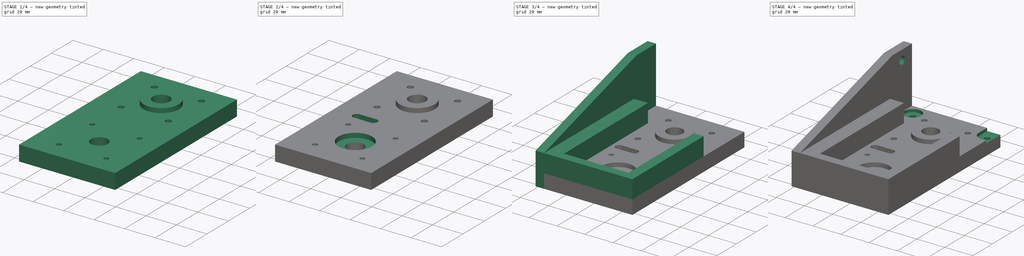
[diagram: build sequence overview — one tinted view per stage of 4, left to right]
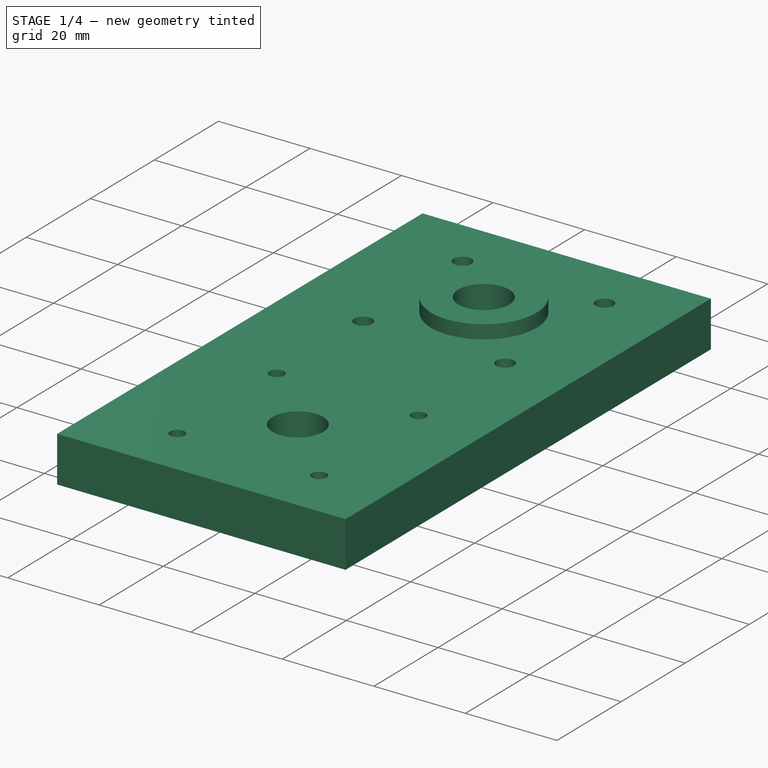
[diagram: stage 1 of 4 — iso view after this stage's code; geometry added in this stage tinted green]
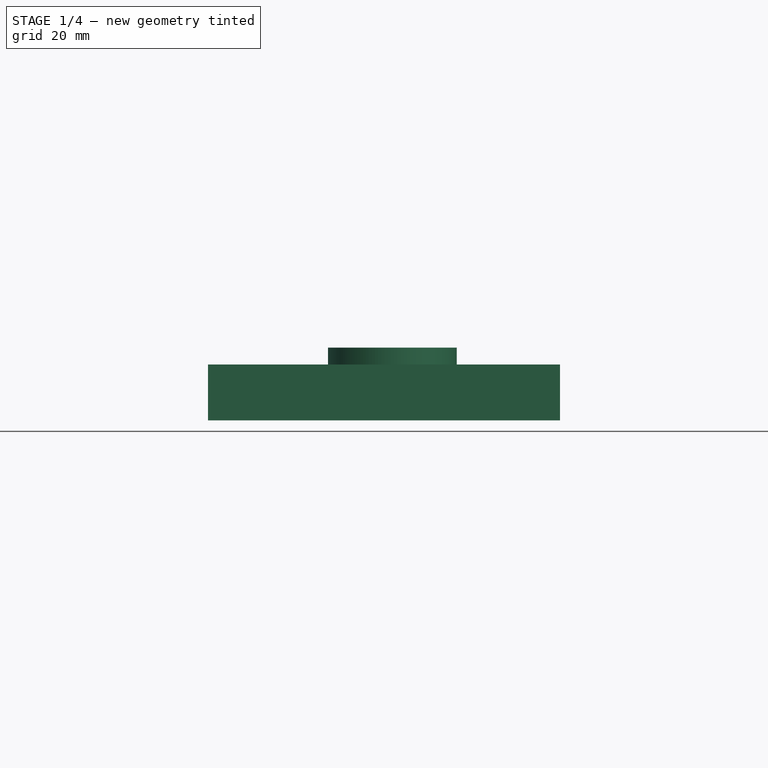
[diagram: stage 1 of 4 — front view after this stage's code; geometry added in this stage tinted green]
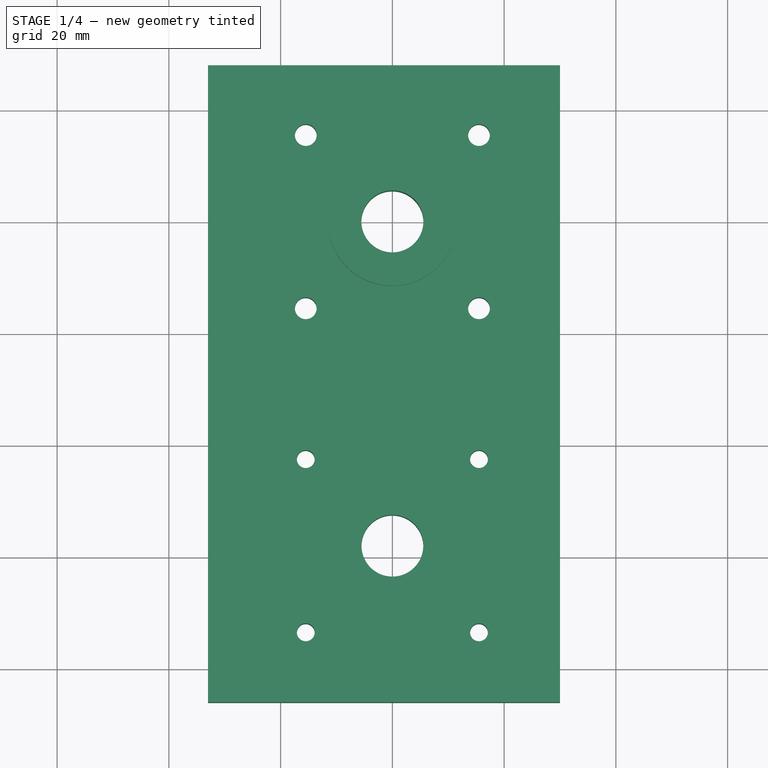
[diagram: stage 1 of 4 — top view after this stage's code; geometry added in this stage tinted green]
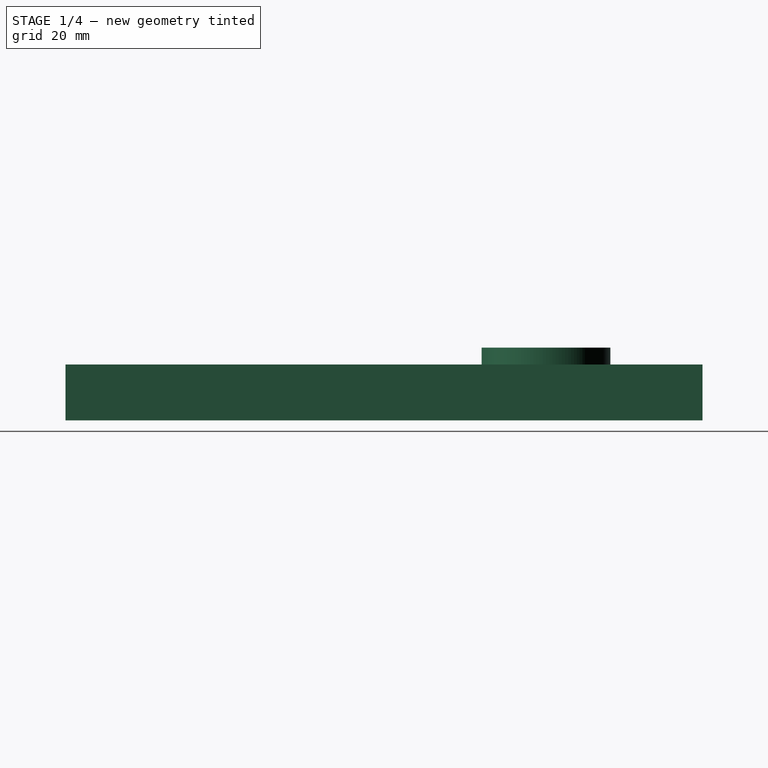
[diagram: stage 1 of 4 — right view after this stage's code; geometry added in this stage tinted green]
FCSTD DOCUMENT  (FreeCAD 0.19R)
Label: BeltDriveUnit2.1
License: All rights reserved
LicenseURL: http://en.wikipedia.org/wiki/All_rights_reserved
objects: Sketcher::SketchObject×18, PartDesign::Pocket×8, PartDesign::Pad×4, PartDesign::Body×1
note: 43 computed .brp shape members not serialized (recipe doc carries the construction recipe); baked Part::Feature solids carry a one-line shape summary decoded from their .brp

FEATURE [Sketcher::SketchObject] Sketch
  FullyConstrained = false
  MapMode = 5
  Support = -> [XY_Plane]
  sketch-geometry (17):
    g0: LineSegment StartX=-33 StartY=28 StartZ=0 EndX=30 EndY=28 EndZ=0
    g1: LineSegment StartX=30 StartY=28 StartZ=0 EndX=30 EndY=-86 EndZ=0
    g2: LineSegment StartX=30 StartY=-86 StartZ=0 EndX=-33 EndY=-86 EndZ=0
    g3: LineSegment StartX=-33 StartY=-86 StartZ=0 EndX=-33 EndY=28 EndZ=0
    g4: LineSegment StartX=-21 StartY=21 StartZ=0 EndX=21 EndY=21 EndZ=0
    g5: LineSegment StartX=21 StartY=21 StartZ=0 EndX=21 EndY=-21 EndZ=0
    g6: LineSegment StartX=21 StartY=-21 StartZ=0 EndX=-21 EndY=-21 EndZ=0
    g7: LineSegment StartX=-21 StartY=-21 StartZ=0 EndX=-21 EndY=21 EndZ=0
    g8: Circle CenterX=-15.5 CenterY=15.5 CenterZ=0 NormalX=0 NormalY=0 NormalZ=1 AngleXU=0 Radius=1.95
    g9: Circle CenterX=15.5 CenterY=15.5 CenterZ=0 NormalX=0 NormalY=0 NormalZ=1 AngleXU=0 Radius=1.95
    g10: Circle CenterX=-15.5 CenterY=-15.5 CenterZ=0 NormalX=0 NormalY=0 NormalZ=1 AngleXU=0 Radius=1.95
    g11: Circle CenterX=15.5 CenterY=-15.5 CenterZ=0 NormalX=0 NormalY=0 NormalZ=1 AngleXU=0 Radius=1.95
    g12: Circle CenterX=0 CenterY=-58 CenterZ=0 NormalX=0 NormalY=0 NormalZ=1 AngleXU=0 Radius=5.525
    g13: Circle CenterX=-15.5 CenterY=-42.5 CenterZ=0 NormalX=0 NormalY=0 NormalZ=1 AngleXU=0 Radius=1.6
    g14: Circle CenterX=15.5 CenterY=-42.5 CenterZ=0 NormalX=0 NormalY=0 NormalZ=1 AngleXU=0 Radius=1.6
    g15: Circle CenterX=-15.5 CenterY=-73.5 CenterZ=0 NormalX=0 NormalY=0 NormalZ=1 AngleXU=0 Radius=1.6
    g16: Circle CenterX=15.5 CenterY=-73.5 CenterZ=0 NormalX=0 NormalY=0 NormalZ=1 AngleXU=0 Radius=1.6
  constraints (44):
    c: Coincident(g0,g1)
    c: Coincident(g1,g2)
    c: Coincident(g2,g3)
    c: Coincident(g3,g0)
    c: Horizontal(g2)
    c: Vertical(g1)
    c: Vertical(g3)
    c: Coincident(g4,g5)
    c: Coincident(g5,g6)
    c: Coincident(g6,g7)
    c: Coincident(g7,g4)
    c: Horizontal(g4)
    c: Horizontal(g6)
    c: Vertical(g5)
    c: Vertical(g7)
    c: Equal(g5,g4)
    c: Distance(g5) = 42
    c: Symmetric(g4,g6,g-1)
    c: Distance(g4,g0) = 7
    c: Diameter(g11) = 3.9
    c: Equal(g11,g10)
    c: Equal(g11,g8)
    c: Equal(g11,g9)
    c: Distance(g9,g8) = 31
    c: Symmetric(g9,g8,g-2)
    c: Distance(g10,g8) = 31
    c: DistanceY(g11,g9) = 31
    c: DistanceX(g10,g11) = 31
    c: Symmetric(g9,g10,g-1)
    c: Diameter(g16) = 3.2
    c: Equal(g16,g14)
    c: Equal(g16,g13)
    c: Equal(g16,g15)
    c: Symmetric(g14,g13,g-2)
    c: Symmetric(g16,g15,g-2)
    c: Symmetric(g16,g13,g12)
    c: PointOnObject(g12,g-2)
    c: Distance(g14,g13) = 31
    c: Distance(g16,g14) = 31
    c: Distance(g-1,g12) = 58
    c: Diameter(g12) = 11.05
    c: DistanceY(g1) = -86
    c: DistanceX(g0) = 30
    c: DistanceX(g0) = -33
FEATURE [PartDesign::Pad] Pad
  Direction = (1,1,1)
  Length = 10
  Length2 = 100
  Profile = -> Sketch
  Type = 0
FEATURE [Sketcher::SketchObject] Sketch004  label="StepperPlugArtillery"
  FullyConstrained = true
  MapMode = 5
  Placement = pos=(0,0,10) rot=(0,0,1;0rad)
  Support = -> [Pad]
  sketch-geometry (1):
    g0: Circle CenterX=0 CenterY=0 CenterZ=0 NormalX=0 NormalY=0 NormalZ=1 AngleXU=0 Radius=11.525
  constraints (2):
    c: Coincident(g0,g-1)
    c: Diameter(g0) = 23.05
FEATURE [PartDesign::Pad] Pad001
  BaseFeature = -> Pad
  Direction = (1,1,1)
  Length = 3
  Length2 = 100
  Profile = -> Sketch004
  Type = 0
FEATURE [Sketcher::SketchObject] Sketch003  label="BearingBore"
  FullyConstrained = false
  MapMode = 5
  Placement = pos=(0,0,13) rot=(0,0,1;0rad)
  Support = -> [Pad001]
  sketch-geometry (1):
    g0: Circle CenterX=0 CenterY=0 CenterZ=0 NormalX=0 NormalY=0 NormalZ=1 AngleXU=0 Radius=5.55
  constraints (1):
    c: Diameter(g0) = 11.1
FEATURE [PartDesign::Pocket] Pocket
  BaseFeature = -> Pad001
  Length = 5
  Length2 = 100
  Profile = -> Sketch003
  Type = 1
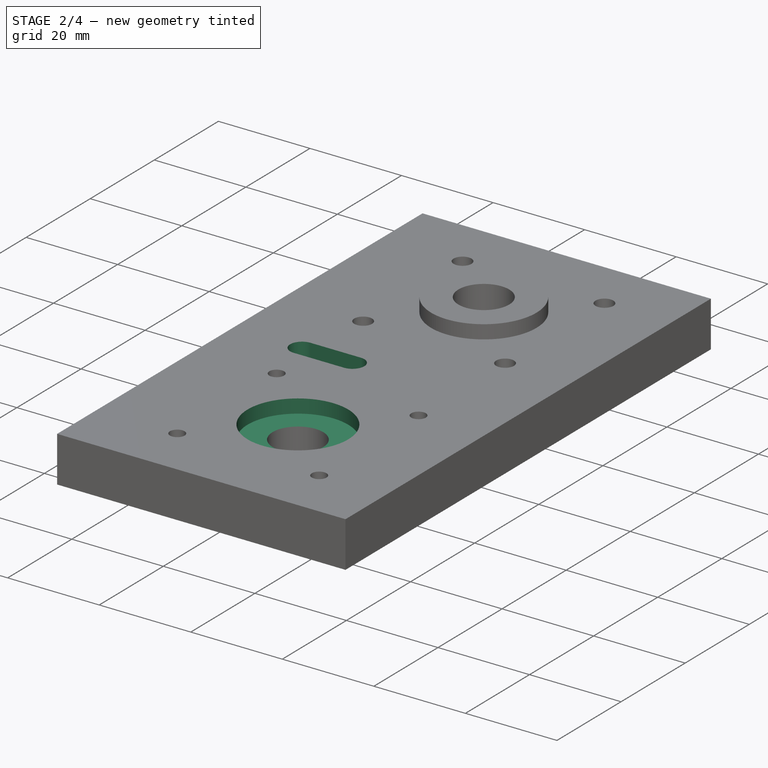
[diagram: stage 2 of 4 — iso view after this stage's code; geometry added in this stage tinted green]
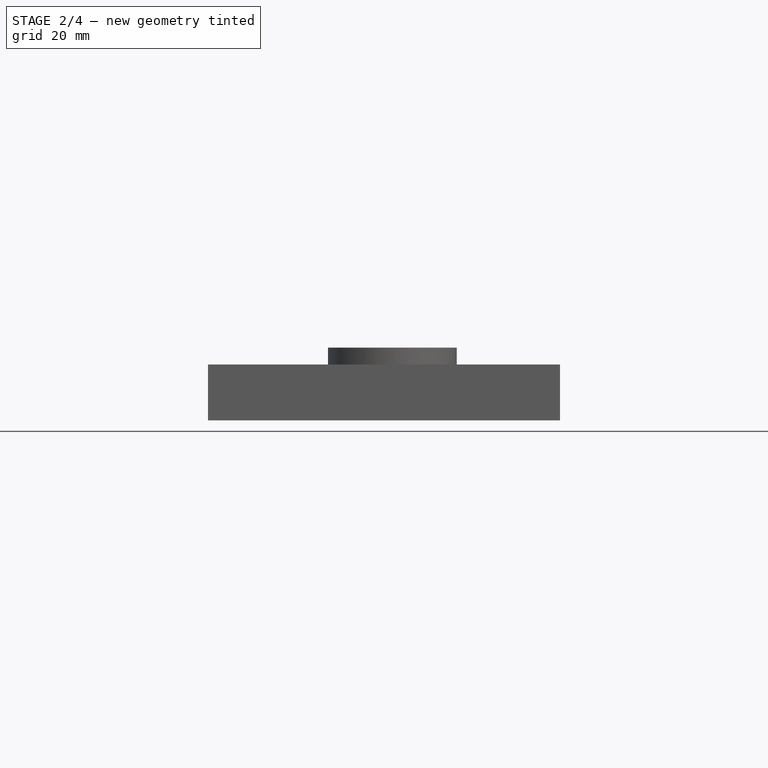
[diagram: stage 2 of 4 — front view after this stage's code; geometry added in this stage tinted green]
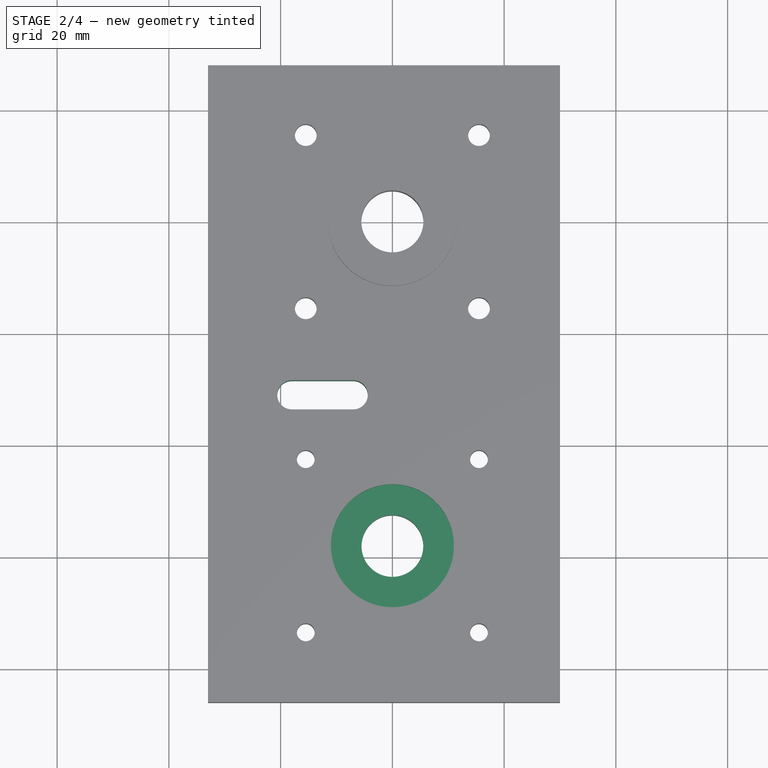
[diagram: stage 2 of 4 — top view after this stage's code; geometry added in this stage tinted green]
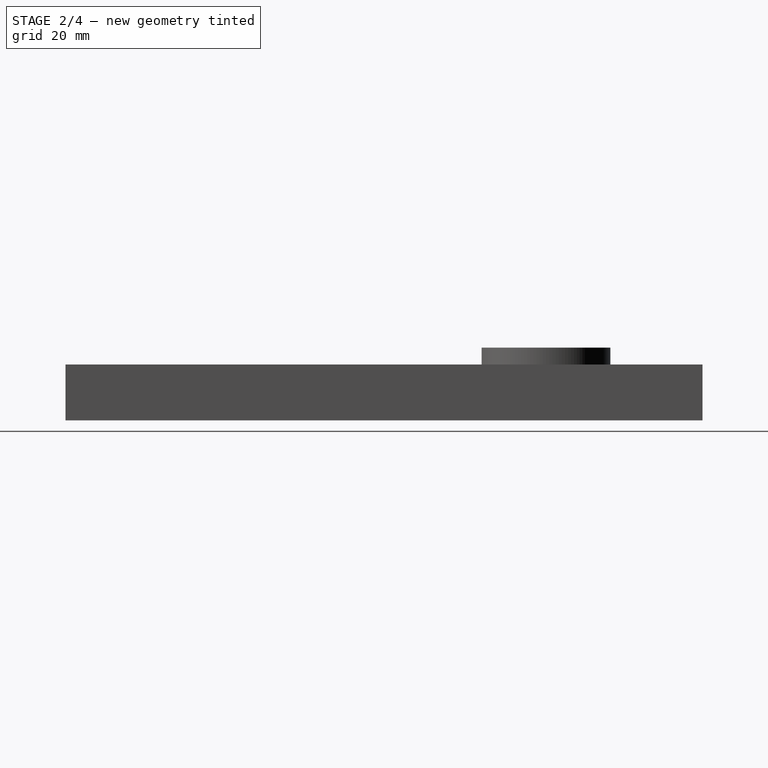
[diagram: stage 2 of 4 — right view after this stage's code; geometry added in this stage tinted green]
FEATURE [Sketcher::SketchObject] Sketch006
  ExternalGeometry = -> [Pocket]
  FullyConstrained = true
  MapMode = 5
  Placement = pos=(0,0,10) rot=(0,0,1;0rad)
  Support = -> [Pocket]
  sketch-geometry (1):
    g0: Circle CenterX=0 CenterY=-58 CenterZ=0 NormalX=0 NormalY=0 NormalZ=1 AngleXU=0 Radius=11
  constraints (2):
    c: Coincident(g0,g-3)
    c: Diameter(g0) = 22
FEATURE [PartDesign::Pocket] Pocket001
  BaseFeature = -> Pocket
  Length = 3
  Length2 = 100
  Profile = -> Sketch006
  Type = 0
FEATURE [Sketcher::SketchObject] Sketch007
  ExternalGeometry = -> [Pocket001]
  FullyConstrained = true
  MapMode = 5
  Placement = pos=(0,0,0) rot=(1,0,0;3.14159rad)
  Support = -> [Pocket001]
  sketch-geometry (4):
    g0: Circle CenterX=-15.5 CenterY=73.5 CenterZ=0 NormalX=0 NormalY=0 NormalZ=1 AngleXU=0 Radius=3.5
    g1: Circle CenterX=15.5 CenterY=73.5 CenterZ=0 NormalX=0 NormalY=0 NormalZ=1 AngleXU=0 Radius=3.5
    g2: Circle CenterX=15.5 CenterY=42.5 CenterZ=0 NormalX=0 NormalY=0 NormalZ=1 AngleXU=0 Radius=3.5
    g3: Circle CenterX=-15.5 CenterY=42.5 CenterZ=0 NormalX=0 NormalY=0 NormalZ=1 AngleXU=0 Radius=3.5
  constraints (9):
    c: Diameter(g3) = 7
    c: Equal(g3,g1)
    c: Equal(g3,g2)
    c: Equal(g3,g0)
    c: Symmetric(g0,g2,g-3)
    c: Symmetric(g1,g3,g-3)
    c: Distance(g2,g1) = 31
    c: Distance(g3,g2) = 31
    c: Symmetric(g3,g2,g-2)
FEATURE [PartDesign::Pocket] Pocket002
  BaseFeature = -> Pocket001
  Length = 0.01
  Length2 = 100
  Profile = -> Sketch007
  Type = 0
FEATURE [Sketcher::SketchObject] Sketch008  label="Slot"
  ExternalGeometry = -> [Pocket002]
  FullyConstrained = true
  MapMode = 5
  Placement = pos=(0,0,10) rot=(0,0,1;0rad)
  Support = -> [Pocket002]
  sketch-geometry (11):
    g0: Circle CenterX=0 CenterY=0 CenterZ=0 NormalX=0 NormalY=0 NormalZ=1 AngleXU=0 Radius=18.5
    g1: Circle CenterX=0 CenterY=-58 CenterZ=0 NormalX=0 NormalY=0 NormalZ=1 AngleXU=0 Radius=6
    g2: LineSegment StartX=-18.0653 StartY=-3.98707 StartZ=0 EndX=-5.859 EndY=-59.2931 EndZ=0
    g3: ArcOfCircle CenterX=-18 CenterY=-31 CenterZ=0 NormalX=0 NormalY=0 NormalZ=1 AngleXU=0 Radius=2.6 StartAngle=1.5708 EndAngle=4.71239
    g4: ArcOfCircle CenterX=-7 CenterY=-31 CenterZ=0 NormalX=0 NormalY=0 NormalZ=1 AngleXU=0 Radius=2.6 StartAngle=4.71239 EndAngle=7.85398
    g5: LineSegment StartX=-18 StartY=-33.6 StartZ=0 EndX=-7 EndY=-33.6 EndZ=0
    g6: LineSegment StartX=-18 StartY=-28.4 StartZ=0 EndX=-7 EndY=-28.4 EndZ=0
    g7: Circle CenterX=-18 CenterY=-31 CenterZ=0 NormalX=0 NormalY=0 NormalZ=1 AngleXU=0 Radius=6
    g8: Circle CenterX=-7 CenterY=-31 CenterZ=0 NormalX=0 NormalY=0 NormalZ=1 AngleXU=0 Radius=6
    g9: LineSegment StartX=-15.5 StartY=-37 StartZ=0 EndX=-15.5 EndY=-79 EndZ=0
    g10: LineSegment StartX=-15.5 StartY=-31 StartZ=0 EndX=-15.5 EndY=-37 EndZ=0
  constraints (29):
    c: Diameter(g0) = 37
    c: Coincident(g0,g-1)
    c: Diameter(g1) = 12
    c: Coincident(g1,g-3)
    c: PointOnObject(g2,g0)
    c: PointOnObject(g2,g1)
    c: Tangent(g2,g0)
    c: Tangent(g1,g2)
    c: Tangent(g3,g6) = 1.5708
    c: Tangent(g3,g5) = -1.5708
    c: Tangent(g5,g4) = -1.5708
    c: Tangent(g6,g4) = 1.5708
    c: Horizontal(g5)
    c: Equal(g3,g4)
    c: Diameter(g7) = 12
    c: Coincident(g3,g7)
    c: Diameter(g8) = 12
    c: Coincident(g8,g4)
    c: Distance(g3,g3) = 5.2
    c: Distance(g6) = 11
    c: DistanceX(g4) = -7
    c: Vertical(g9)
    c: Distance(g9) = 42
    c: PointOnObject(g-5,g9)
    c: DistanceY(g-5,g9) = 5.5
    c: Vertical(g10)
    c: Distance(g10) = 6
    c: Coincident(g10,g9)
    c: DistanceY(g10,g3) = 0
FEATURE [PartDesign::Pocket] Pocket003
  BaseFeature = -> Pocket002
  Length = 5
  Length2 = 100
  Profile = -> Sketch008
  Type = 1
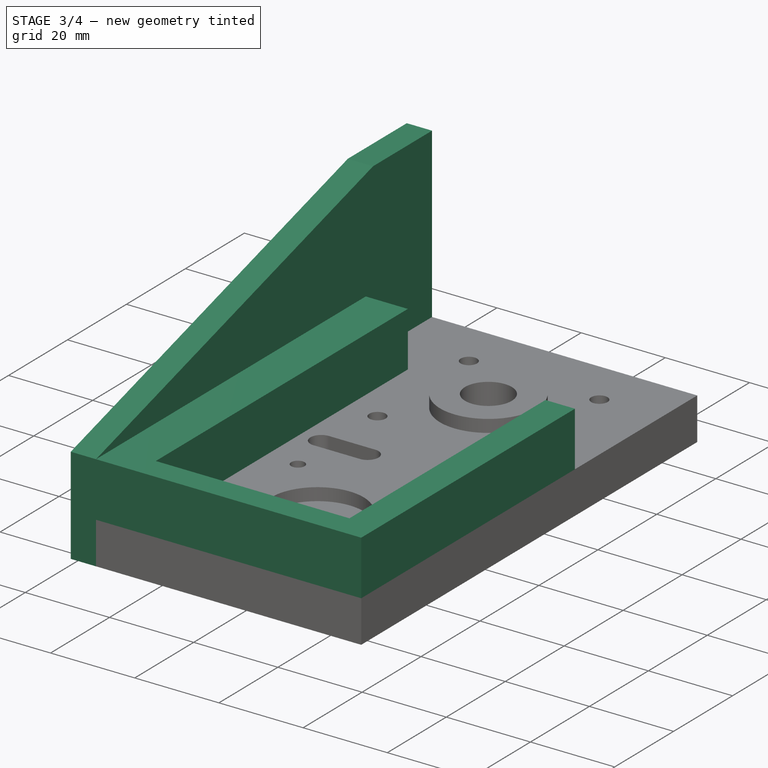
[diagram: stage 3 of 4 — iso view after this stage's code; geometry added in this stage tinted green]
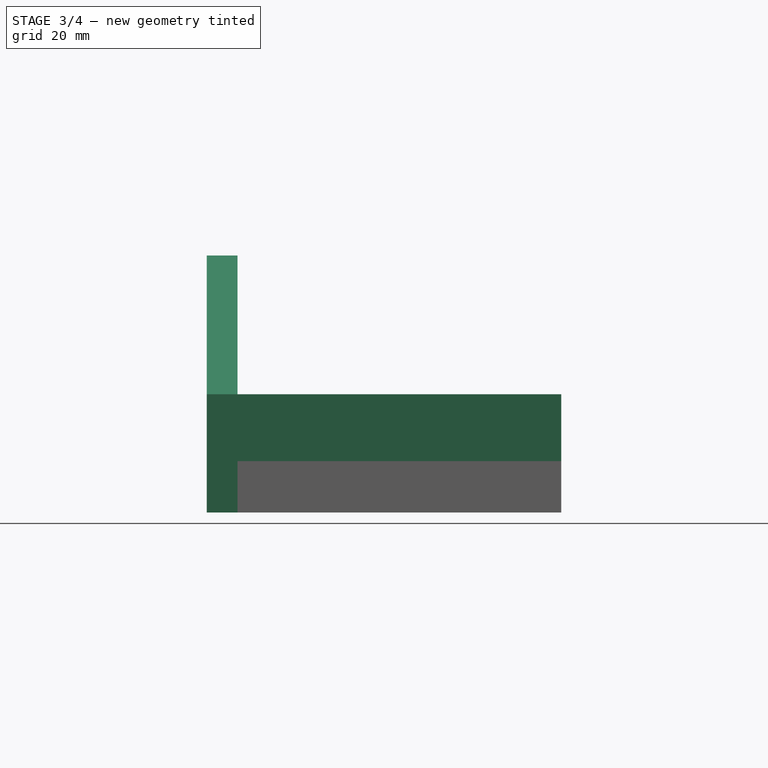
[diagram: stage 3 of 4 — front view after this stage's code; geometry added in this stage tinted green]
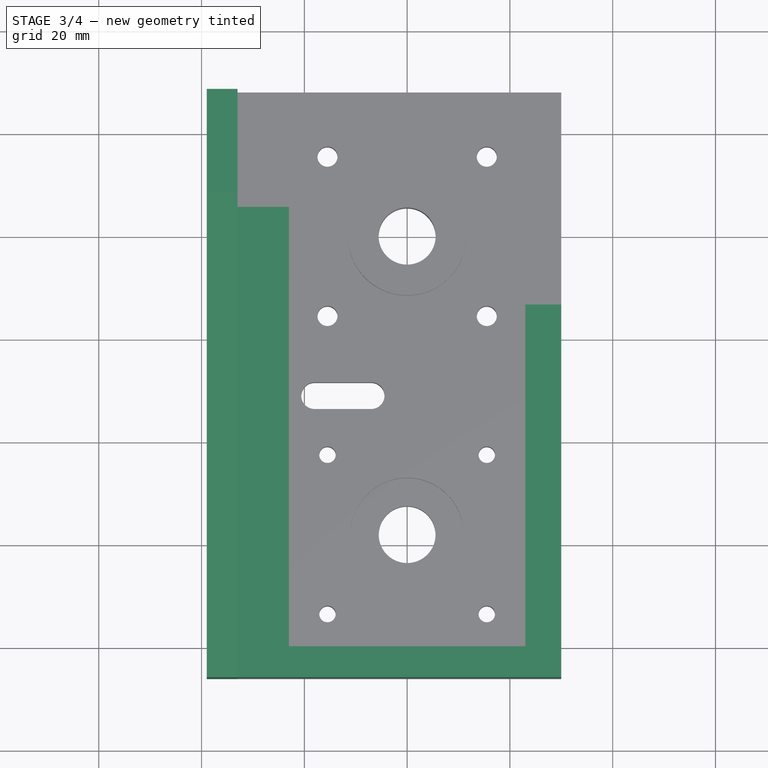
[diagram: stage 3 of 4 — top view after this stage's code; geometry added in this stage tinted green]
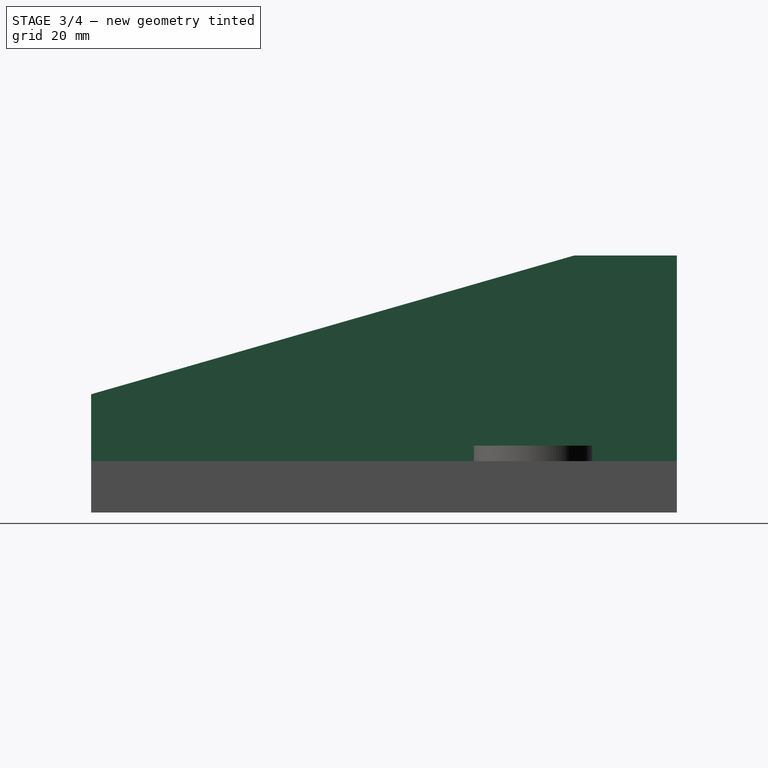
[diagram: stage 3 of 4 — right view after this stage's code; geometry added in this stage tinted green]
FEATURE [Sketcher::SketchObject] Sketch009  label="JackScrew"
  FullyConstrained = true
  MapMode = 5
  Placement = pos=(-33,0,0) rot=(0.57735,-0.57735,-0.57735;2.0944rad)
  Support = -> [Pocket003]
  sketch-geometry (1):
    g0: Circle CenterX=31 CenterY=5 CenterZ=0 NormalX=0 NormalY=0 NormalZ=1 AngleXU=0 Radius=1.7
  constraints (3):
    c: Diameter(g0) = 3.4
    c: DistanceY(g0) = 5
    c: DistanceX(g0) = 31
FEATURE [PartDesign::Pocket] Pocket004
  BaseFeature = -> Pocket003
  Length = 12
  Length2 = 100
  Profile = -> Sketch009
  Type = 0
FEATURE [Sketcher::SketchObject] Sketch014  label="Stiffernerring"
  ExternalGeometry = -> [Pocket004]
  FullyConstrained = true
  MapMode = 5
  Placement = pos=(0,0,10) rot=(0,0,1;0rad)
  Support = -> [Pocket004]
  sketch-geometry (8):
    g0: LineSegment StartX=-33 StartY=5.5 StartZ=0 EndX=-23 EndY=5.5 EndZ=0
    g1: LineSegment StartX=-23 StartY=5.5 StartZ=0 EndX=-23 EndY=-80 EndZ=0
    g2: LineSegment StartX=-23 StartY=-80 StartZ=0 EndX=23 EndY=-80 EndZ=0
    g3: LineSegment StartX=23 StartY=-80 StartZ=0 EndX=23 EndY=-13.5 EndZ=0
    g4: LineSegment StartX=23 StartY=-13.5 StartZ=0 EndX=30 EndY=-13.5 EndZ=0
    g5: LineSegment StartX=30 StartY=-13.5 StartZ=0 EndX=30 EndY=-86 EndZ=0
    g6: LineSegment StartX=30 StartY=-86 StartZ=0 EndX=-33 EndY=-86 EndZ=0
    g7: LineSegment StartX=-33 StartY=-86 StartZ=0 EndX=-33 EndY=5.5 EndZ=0
  constraints (22):
    c: Coincident(g0,g1)
    c: Vertical(g1)
    c: Coincident(g1,g2)
    c: Horizontal(g2)
    c: Coincident(g2,g3)
    c: Vertical(g3)
    c: Coincident(g3,g4)
    c: Coincident(g4,g5)
    c: Coincident(g5,g6)
    c: Coincident(g6,g7)
    c: Coincident(g7,g0)
    c: Horizontal(g0)
    c: Distance(g0) = 10
    c: Horizontal(g4)
    c: Distance(g4) = 7
    c: Distance(g2,g6) = 6
    c: PointOnObject(g4,g-5)
    c: DistanceY(g-6,g0) = 21
    c: Coincident(g5,g-5)
    c: Coincident(g6,g-4)
    c: Vertical(g7)
    c: DistanceY(g4) = -13.5
FEATURE [PartDesign::Pad] Pad002
  BaseFeature = -> Pocket004
  Direction = (1,1,1)
  Length = 13
  Length2 = 100
  Profile = -> Sketch014
  Type = 0
FEATURE [Sketcher::SketchObject] Sketch016  label="RightReleif"
  FullyConstrained = false
  MapMode = 5
  Placement = pos=(0,0,23) rot=(0,0,1;0rad)
  Support = -> [Pad002]
  sketch-geometry (4):
    g0: LineSegment StartX=26.5 StartY=31.8178 StartZ=0 EndX=43.3193 EndY=31.8178 EndZ=0
    g1: LineSegment StartX=43.3193 StartY=31.8178 StartZ=0 EndX=43.3193 EndY=-39.2862 EndZ=0
    g2: LineSegment StartX=43.3193 StartY=-39.2862 StartZ=0 EndX=26.5 EndY=-39.2862 EndZ=0
    g3: LineSegment StartX=26.5 StartY=-39.2862 StartZ=0 EndX=26.5 EndY=31.8178 EndZ=0
  constraints (8):
    c: Coincident(g0,g1)
    c: Coincident(g1,g2)
    c: Coincident(g2,g3)
    c: Coincident(g3,g0)
    c: Horizontal(g0)
    c: Horizontal(g2)
    c: Vertical(g1)
    c: Vertical(g3)
FEATURE [Sketcher::SketchObject] Sketch017
  FullyConstrained = false
  MapMode = 5
  Placement = pos=(30,0,0) rot=(0.57735,0.57735,0.57735;2.0944rad)
  sketch-geometry (4):
    g0: LineSegment StartX=-9.46299 StartY=15.1859 StartZ=0 EndX=6.67521 EndY=15.1859 EndZ=0
    g1: LineSegment StartX=6.67521 StartY=15.1859 StartZ=0 EndX=16.6576 EndY=27.3311 EndZ=0
    g2: LineSegment StartX=16.6576 StartY=27.3311 StartZ=0 EndX=-19.9445 EndY=30.3258 EndZ=0
    g3: LineSegment StartX=-19.9445 StartY=30.3258 StartZ=0 EndX=-9.46299 EndY=15.1859 EndZ=0
  constraints (5):
    c: Horizontal(g0)
    c: Coincident(g0,g1)
    c: Coincident(g1,g2)
    c: Coincident(g2,g3)
    c: Coincident(g3,g0)
FEATURE [Sketcher::SketchObject] Sketch019
  FullyConstrained = false
  MapMode = 5
  Placement = pos=(-3e-14,28,0) rot=(0,0.707107,0.707107;3.14159rad)
  sketch-geometry (4):
    g0: LineSegment StartX=33 StartY=0 StartZ=0 EndX=39 EndY=0 EndZ=0
    g1: LineSegment StartX=39 StartY=0 StartZ=0 EndX=39 EndY=50 EndZ=0
    g2: LineSegment StartX=39 StartY=50 StartZ=0 EndX=33 EndY=50 EndZ=0
    g3: LineSegment StartX=33 StartY=50 StartZ=0 EndX=33 EndY=0 EndZ=0
  constraints (10):
    c: Horizontal(g0)
    c: Coincident(g0,g1)
    c: Vertical(g1)
    c: Coincident(g1,g2)
    c: Horizontal(g2)
    c: Coincident(g2,g3)
    c: Vertical(g3)
    c: Coincident(g3,g0)
    c: Distance(g1) = 50
    c: Distance(g2) = 6
FEATURE [Sketcher::SketchObject] Sketch020
  FullyConstrained = false
  MapMode = 5
  Placement = pos=(-3.32e-14,28,-6e-15) rot=(0,0.707107,0.707107;3.14159rad)
  sketch-geometry (4):
    g0: LineSegment StartX=32.4511 StartY=52.4811 StartZ=0 EndX=32.4511 EndY=5 EndZ=0
    g1: LineSegment StartX=32.4511 StartY=5 StartZ=0 EndX=25.1892 EndY=5 EndZ=0
    g2: LineSegment StartX=25.1892 StartY=5 StartZ=0 EndX=25.1892 EndY=53.0327 EndZ=0
    g3: LineSegment StartX=25.1892 StartY=53.0327 StartZ=0 EndX=32.4511 EndY=52.4811 EndZ=0
  constraints (8):
    c: Vertical(g0)
    c: Coincident(g0,g1)
    c: Coincident(g1,g2)
    c: Vertical(g2)
    c: Coincident(g2,g3)
    c: Coincident(g3,g0)
    c: Horizontal(g1)
    c: DistanceY(g0) = 5
FEATURE [Sketcher::SketchObject] Sketch021
  FullyConstrained = false
  MapMode = 5
  Placement = pos=(0,0,0) rot=(1,0,0;3.14159rad)
  sketch-geometry (2):
    g0: Circle CenterX=22.0321 CenterY=-15.8632 CenterZ=0 NormalX=0 NormalY=0 NormalZ=1 AngleXU=0 Radius=2.5567
    g1: Circle CenterX=-28.8865 CenterY=-13.1833 CenterZ=0 NormalX=0 NormalY=0 NormalZ=1 AngleXU=0 Radius=3.07936
FEATURE [Sketcher::SketchObject] Sketch022
  ExternalGeometry = -> [Pad002]
  FullyConstrained = true
  MapMode = 5
  Placement = pos=(-33,0,0) rot=(0.57735,-0.57735,-0.57735;2.0944rad)
  Support = -> [Pad002]
  sketch-geometry (5):
    g0: LineSegment StartX=-28 StartY=0 StartZ=0 EndX=-28 EndY=50 EndZ=0
    g1: LineSegment StartX=-28 StartY=50 StartZ=0 EndX=-8 EndY=50 EndZ=0
    g2: LineSegment StartX=-8 StartY=50 StartZ=0 EndX=86 EndY=23 EndZ=0
    g3: LineSegment StartX=86 StartY=23 StartZ=0 EndX=86 EndY=0 EndZ=0
    g4: LineSegment StartX=86 StartY=0 StartZ=0 EndX=-28 EndY=0 EndZ=0
  constraints (13):
    c: Vertical(g0)
    c: Coincident(g0,g1)
    c: Horizontal(g1)
    c: Coincident(g1,g2)
    c: Coincident(g2,g3)
    c: Coincident(g4,g0)
    c: Horizontal(g4)
    c: DistanceX(g0) = -28
    c: DistanceY(g0) = 50
    c: DistanceX(g1,g1) = 20
    c: Coincident(g3,g-3)
    c: Coincident(g2,g-4)
    c: Coincident(g4,g3)
FEATURE [PartDesign::Pad] Pad003
  BaseFeature = -> Pad002
  Direction = (1,1,1)
  Length = 6
  Length2 = 100
  Profile = -> Sketch022
  Type = 0
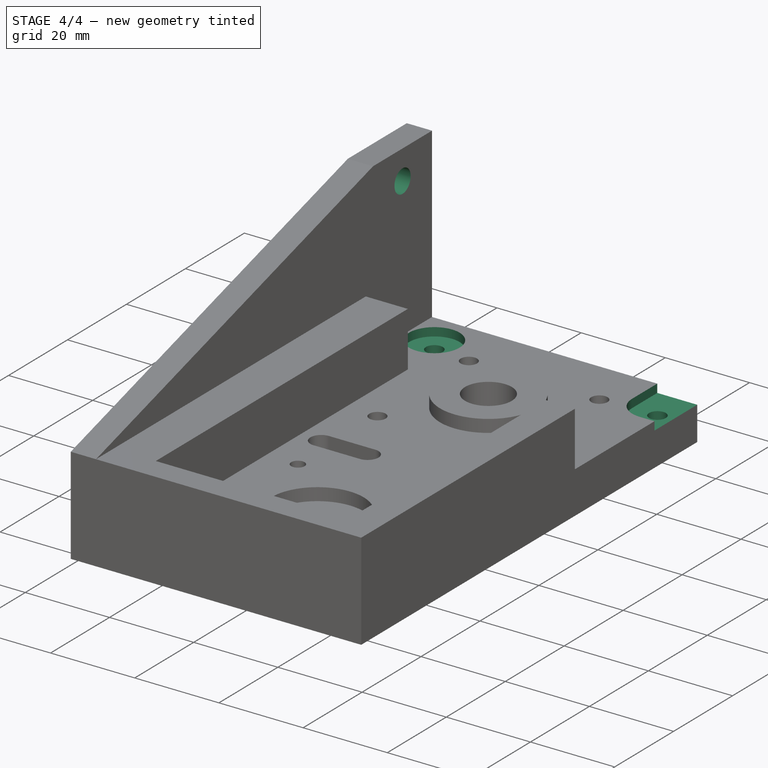
[diagram: stage 4 of 4 — iso view after this stage's code; geometry added in this stage tinted green]
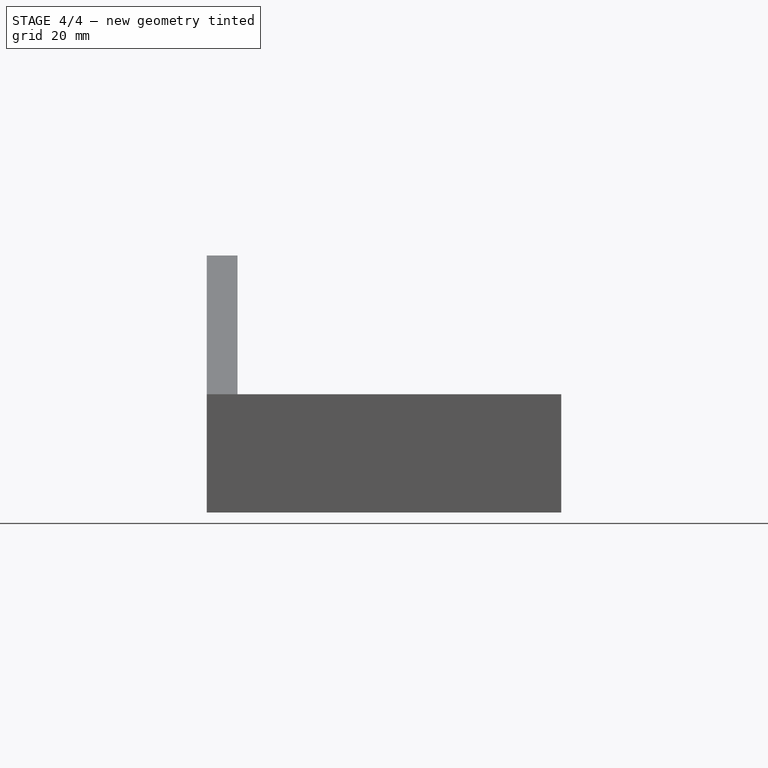
[diagram: stage 4 of 4 — front view after this stage's code; geometry added in this stage tinted green]
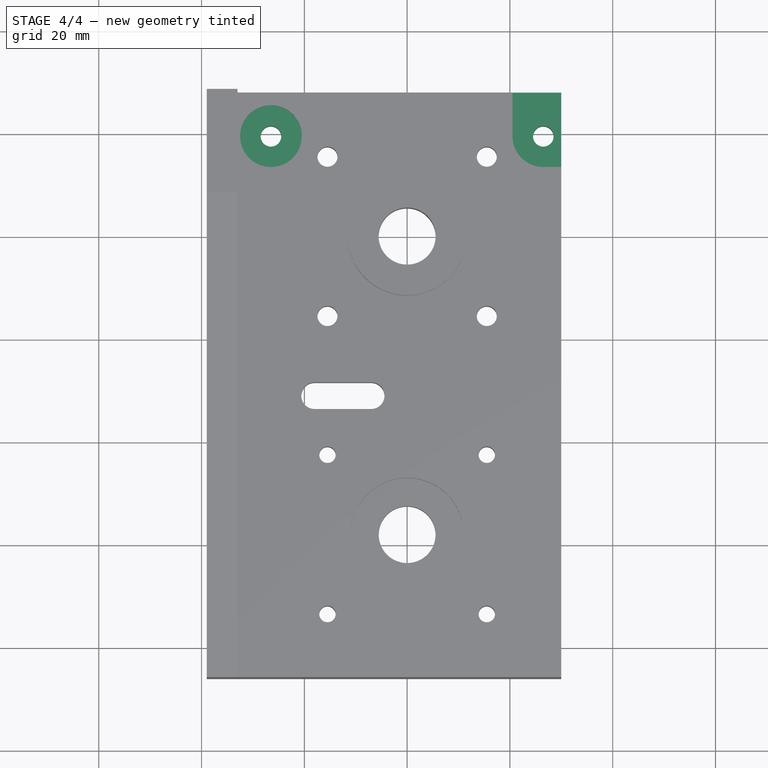
[diagram: stage 4 of 4 — top view after this stage's code; geometry added in this stage tinted green]
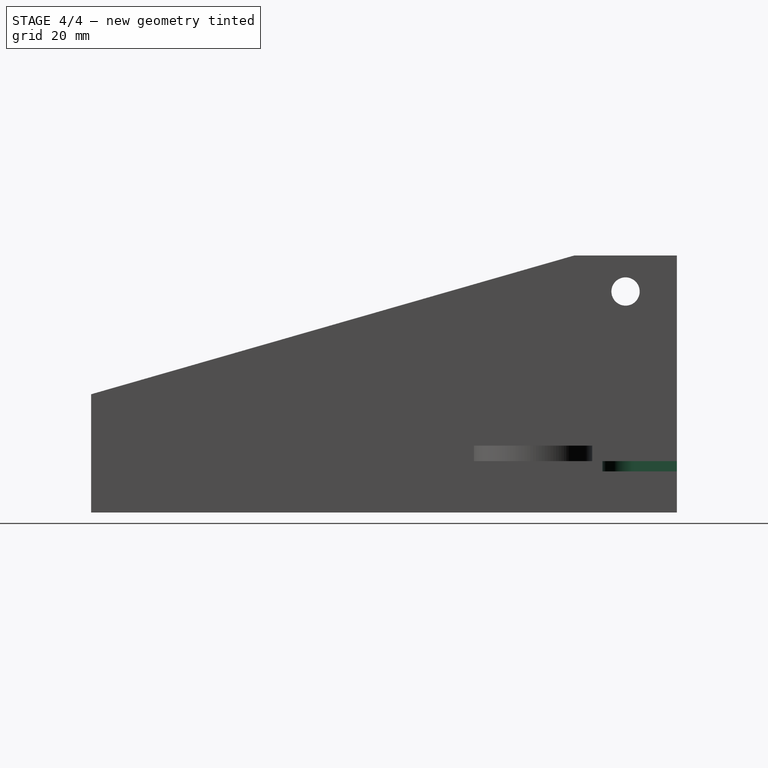
[diagram: stage 4 of 4 — right view after this stage's code; geometry added in this stage tinted green]
FEATURE [Sketcher::SketchObject] Sketch023
  FullyConstrained = true
  MapMode = 5
  Placement = pos=(-39,0,0) rot=(0.57735,-0.57735,-0.57735;2.0944rad)
  Support = -> [Pad003]
  sketch-geometry (1):
    g0: Circle CenterX=-18 CenterY=43 CenterZ=0 NormalX=0 NormalY=0 NormalZ=1 AngleXU=0 Radius=2.75
  constraints (3):
    c: DistanceY(g0) = 43
    c: DistanceX(g0) = -18
    c: Diameter(g0) = 5.5
FEATURE [PartDesign::Pocket] Pocket005
  BaseFeature = -> Pad003
  Length = 9
  Length2 = 100
  Profile = -> Sketch023
  Type = 0
FEATURE [Sketcher::SketchObject] Sketch024
  FullyConstrained = true
  MapMode = 5
  Placement = pos=(0,0,0) rot=(1,0,0;3.14159rad)
  Support = -> [Pocket005]
FEATURE [Sketcher::SketchObject] Sketch025
  ExternalGeometry = -> [Pocket005]
  FullyConstrained = true
  MapMode = 5
  Placement = pos=(0,0,0) rot=(1,0,0;3.14159rad)
  Support = -> [Pocket005]
  sketch-geometry (2):
    g0: Circle CenterX=26.5 CenterY=-19.5 CenterZ=0 NormalX=0 NormalY=0 NormalZ=1 AngleXU=0 Radius=2
    g1: Circle CenterX=-26.5 CenterY=-19.5 CenterZ=0 NormalX=0 NormalY=0 NormalZ=1 AngleXU=0 Radius=2
  constraints (5):
    c: Diameter(g0) = 4
    c: DistanceX(g-3,g0) = 11
    c: DistanceY(g0,g-3) = 4
    c: Symmetric(g0,g1,g-2)
    c: Diameter(g1) = 4
FEATURE [PartDesign::Pocket] Pocket006
  BaseFeature = -> Pocket005
  Length = 16
  Length2 = 100
  Profile = -> Sketch025
  Type = 0
FEATURE [Sketcher::SketchObject] Sketch026
  ExternalGeometry = -> [Pocket006]
  FullyConstrained = true
  MapMode = 5
  Placement = pos=(0,0,10) rot=(0,0,1;0rad)
  Support = -> [Pocket006]
  sketch-geometry (5):
    g0: ArcOfCircle CenterX=26.5 CenterY=19.5 CenterZ=0 NormalX=0 NormalY=0 NormalZ=1 AngleXU=0 Radius=6 StartAngle=3.14159 EndAngle=4.71239
    g1: Circle CenterX=-26.5 CenterY=19.5 CenterZ=0 NormalX=0 NormalY=0 NormalZ=1 AngleXU=0 Radius=6
    g2: LineSegment StartX=26.5 StartY=13.5 StartZ=0 EndX=46.5 EndY=13.5 EndZ=0
    g3: LineSegment StartX=20.5 StartY=46.38 StartZ=0 EndX=20.5 EndY=19.5 EndZ=0
    g4: LineSegment StartX=20.5 StartY=46.38 StartZ=0 EndX=46.5 EndY=13.5 EndZ=0
  constraints (12):
    c: Coincident(g1,g-3)
    c: Diameter(g1) = 12
    c: Diameter(g0) = 12
    c: Tangent(g0,g2) = -1.5708
    c: Horizontal(g2)
    c: Tangent(g3,g0) = -1.5708
    c: Coincident(g0,g-4)
    c: Distance(g2) = 20
    c: Vertical(g3)
    c: Coincident(g4,g3)
    c: Coincident(g4,g2)
    c: Distance(g3) = 26.88
FEATURE [PartDesign::Pocket] Pocket007
  BaseFeature = -> Pocket006
  Length = 2
  Length2 = 100
  Profile = -> Sketch026
  Type = 0
FEATURE [PartDesign::Body] Body
  Group = -> [Sketch,Pad,Sketch003,Sketch004,Pad001,Pocket,Sketch006,Pocket001,Sketch007,Pocket002,Sketch008,Pocket003,Sketch009,Pocket004,Sketch014,Sketch016,Pad002,Sketch017,Sketch019,Sketch020,Sketch021,Sketch022,Pad003,Sketch023,Pocket005,Sketch024,Sketch025,Pocket006,Sketch026,Pocket007]
  Origin = -> Origin
  Tip = -> Pocket007
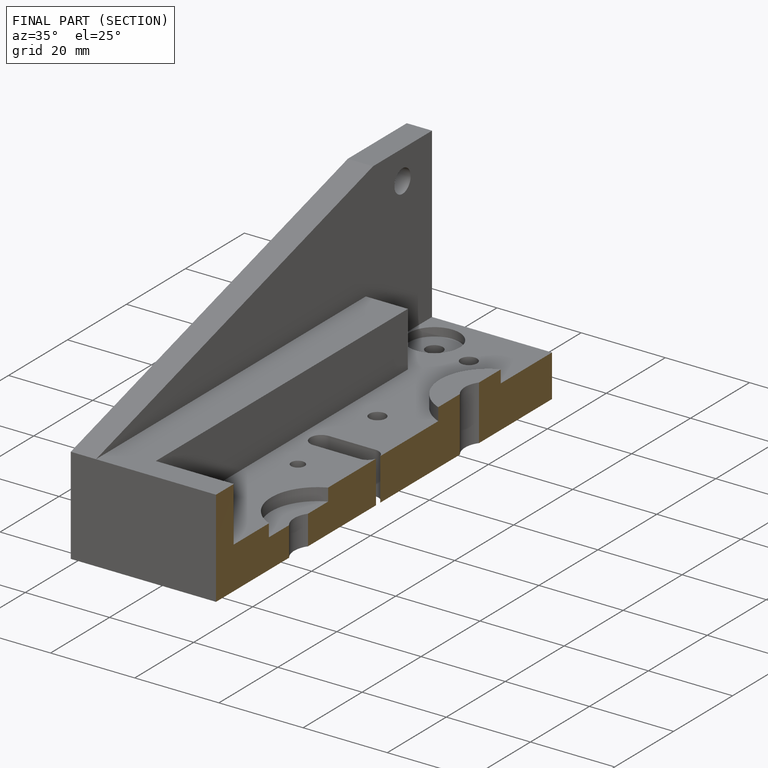
[diagram: finished part — half-section view (interior)]
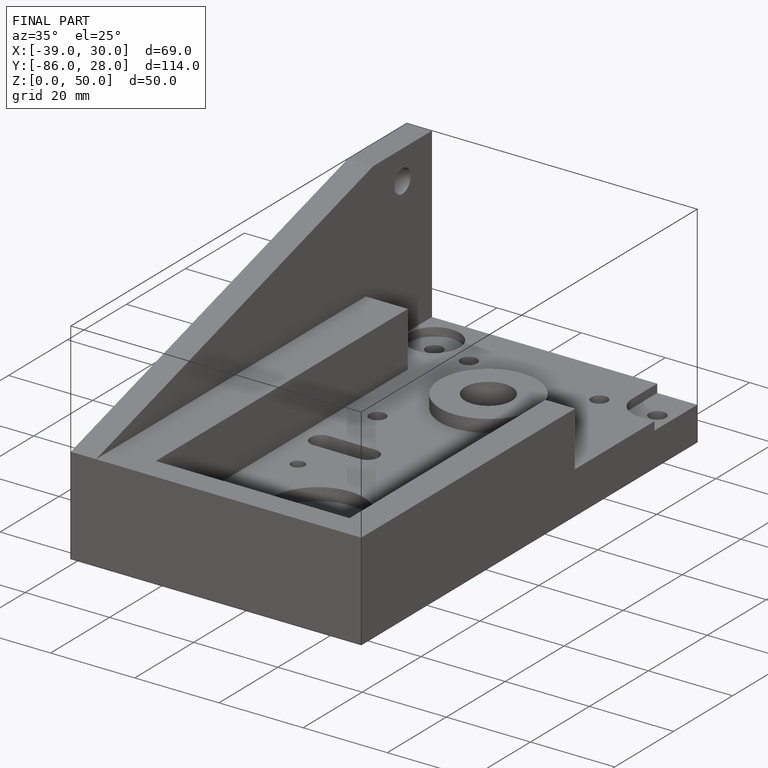
[diagram: finished part — iso view with bounding-box wireframe]
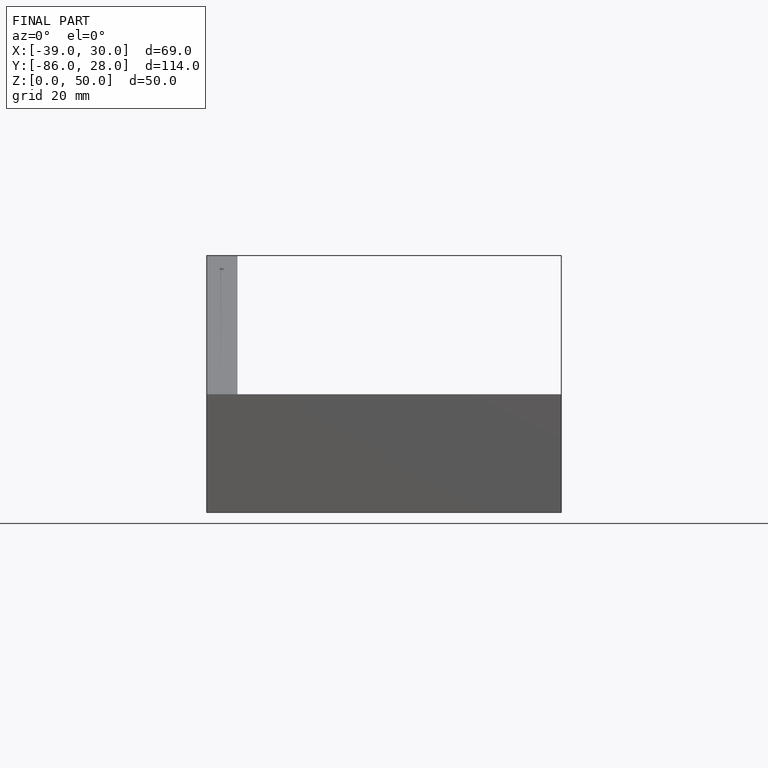
[diagram: finished part — front view with bounding-box wireframe]
